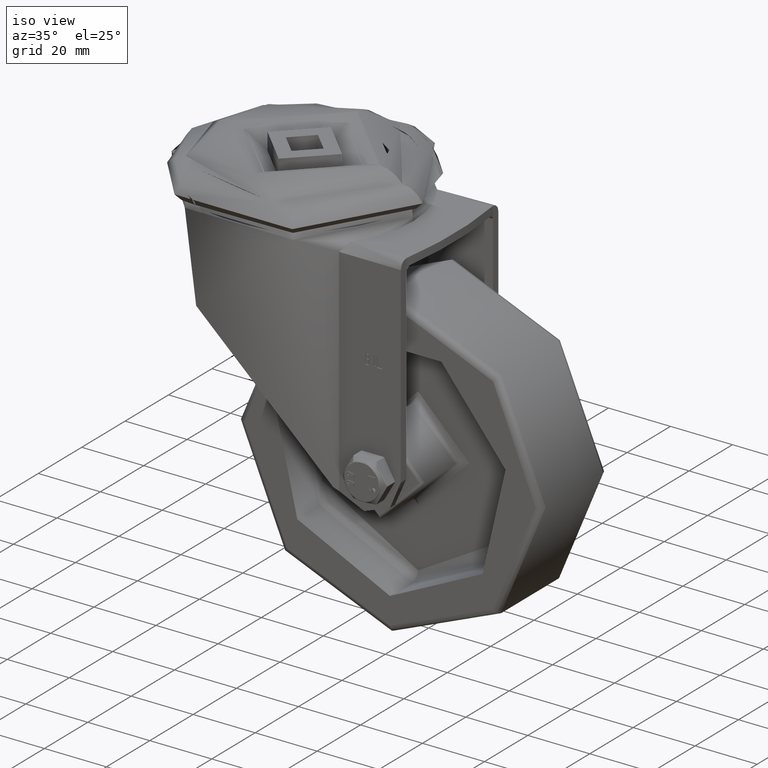
[diagram: clean part render]
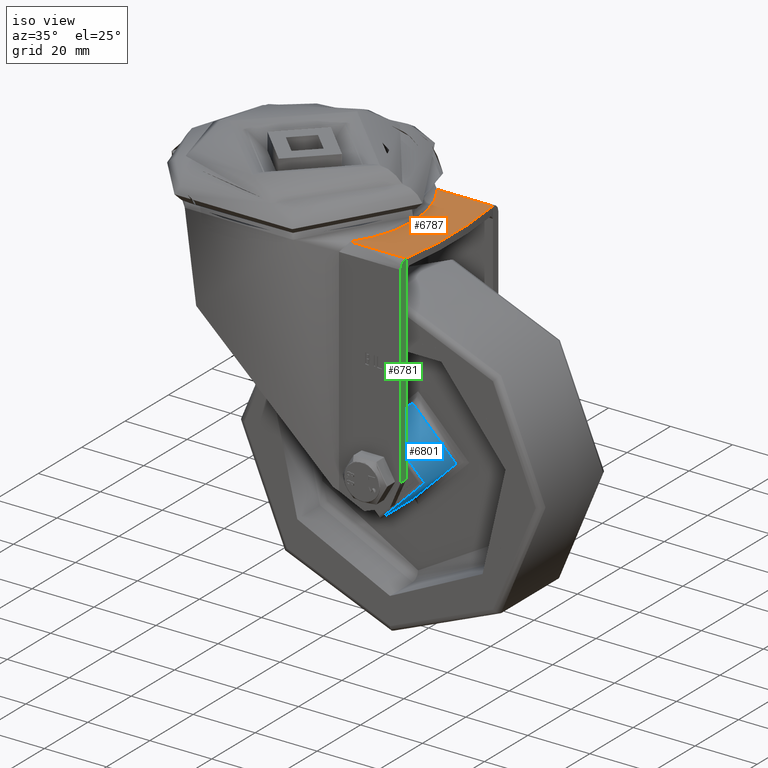
[diagram: same view with three faces highlighted in distinct colors, each labeled with its STEP entity id]
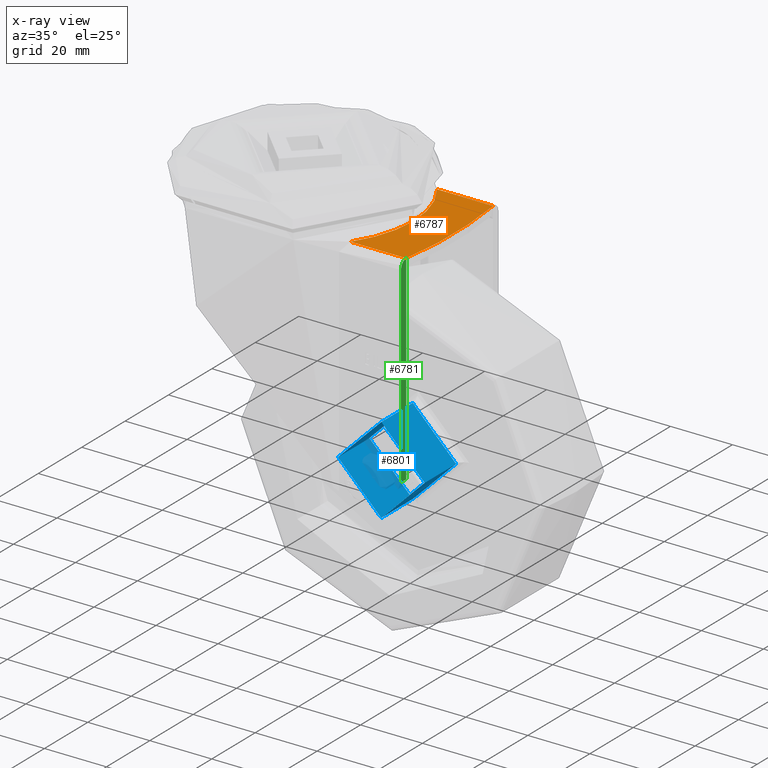
[diagram: x-ray of the same camera — body ghosted, the three highlighted faces saturated]
A machine part, iso view with three faces highlighted in distinct colors.
The next image is the same camera in x-ray (body ghosted, the three faces saturated) — at least one of them is partly hidden behind the body in this view.
Their STEP definitions:

[orange] entity #6787 — the highlighted planar face has unit normal (0, 0, -1).
#506=PLANE('',#7425);
#771=FACE_OUTER_BOUND('',#1204,.T.);
#1204=EDGE_LOOP('',(#4957,#4958,#4959,#4960,#4961));
#1583=LINE('',#10377,#2057);
#1584=LINE('',#10380,#2058);
#2057=VECTOR('',#8304,1000.);
#2058=VECTOR('',#8307,1000.);
#2587=CIRCLE('',#7365,35.);
#2588=CIRCLE('',#7366,35.);
#2604=CIRCLE('',#7418,134.083333333333);
#2928=VERTEX_POINT('',#10272);
#2929=VERTEX_POINT('',#10273);
#2930=VERTEX_POINT('',#10276);
#2938=VERTEX_POINT('',#10375);
#2939=VERTEX_POINT('',#10379);
#3593=EDGE_CURVE('',#2928,#2929,#2587,.T.);
#3595=EDGE_CURVE('',#2929,#2930,#2588,.T.);
#3605=EDGE_CURVE('',#2938,#2928,#1583,.T.);
#3606=EDGE_CURVE('',#2930,#2939,#1584,.T.);
#3736=EDGE_CURVE('',#2939,#2938,#2604,.T.);
#4957=ORIENTED_EDGE('',*,*,#3606,.F.);
#4958=ORIENTED_EDGE('',*,*,#3595,.F.);
#4959=ORIENTED_EDGE('',*,*,#3593,.F.);
#4960=ORIENTED_EDGE('',*,*,#3605,.F.);
#4961=ORIENTED_EDGE('',*,*,#3736,.F.);
#6787=ADVANCED_FACE('',(#771),#506,.F.);
#7365=AXIS2_PLACEMENT_3D('',#10274,#8292,#8293);
#7366=AXIS2_PLACEMENT_3D('',#10277,#8295,#8296);
#7418=AXIS2_PLACEMENT_3D('',#11652,#8482,#8483);
#7425=AXIS2_PLACEMENT_3D('',#11661,#8498,#8499);
#8292=DIRECTION('center_axis',(0.,0.,1.));
#8293=DIRECTION('ref_axis',(-1.,0.,0.));
#8295=DIRECTION('center_axis',(0.,0.,1.));
#8296=DIRECTION('ref_axis',(-1.,0.,0.));
#8304=DIRECTION('',(-1.,3.47980166499789E-16,0.));
#8307=DIRECTION('',(1.,-5.21970249749683E-16,0.));
#8482=DIRECTION('center_axis',(0.,0.,-1.));
#8483=DIRECTION('ref_axis',(0.988812927284027,0.149160969546302,0.));
#8498=DIRECTION('center_axis',(0.,0.,-1.));
#8499=DIRECTION('ref_axis',(-1.,0.,0.));
#10272=CARTESIAN_POINT('',(28.7228132326902,-20.,-4.));
#10273=CARTESIAN_POINT('',(35.,-4.28626379701574E-15,-4.));
#10274=CARTESIAN_POINT('Origin',(1.62468275916488E-16,7.45266716464862E-34,
-4.));
#10276=CARTESIAN_POINT('',(28.7228132326901,20.,-4.));
#10277=CARTESIAN_POINT('Origin',(1.62468275916488E-16,7.45266716464862E-34,
-4.));
#10375=CARTESIAN_POINT('',(46.75,-19.9999999999998,-4.));
#10377=CARTESIAN_POINT('',(41.7648783092273,-20.,-4.));
#10379=CARTESIAN_POINT('',(46.75,19.9999999999999,-4.));
#10380=CARTESIAN_POINT('',(41.7648783092273,20.,-4.));
#11652=CARTESIAN_POINT('Origin',(-85.8333333333332,4.42643606953415E-14,
-4.));
#11661=CARTESIAN_POINT('Origin',(46.75,-22.5,-4.));

[blue] entity #6801 — the highlighted cylindrical surface (bore or boss wall) has radius 14 mm, axis along (0, -1, 0).
#785=FACE_OUTER_BOUND('',#1225,.T.);
#1225=EDGE_LOOP('',(#5032,#5033,#5034,#5035));
#1670=LINE('',#11721,#2144);
#2144=VECTOR('',#8581,14.);
#2623=CIRCLE('',#7460,14.);
#2626=CIRCLE('',#7464,14.);
#3037=VERTEX_POINT('',#11714);
#3039=VERTEX_POINT('',#11720);
#3762=EDGE_CURVE('',#3037,#3037,#2623,.T.);
#3765=EDGE_CURVE('',#3037,#3039,#1670,.T.);
#3766=EDGE_CURVE('',#3039,#3039,#2626,.T.);
#5032=ORIENTED_EDGE('',*,*,#3762,.T.);
#5033=ORIENTED_EDGE('',*,*,#3765,.T.);
#5034=ORIENTED_EDGE('',*,*,#3766,.F.);
#5035=ORIENTED_EDGE('',*,*,#3765,.F.);
#6565=CYLINDRICAL_SURFACE('',#7463,14.);
#6801=ADVANCED_FACE('',(#785),#6565,.T.);
#7460=AXIS2_PLACEMENT_3D('',#11715,#8573,#8574);
#7463=AXIS2_PLACEMENT_3D('',#11719,#8579,#8580);
#7464=AXIS2_PLACEMENT_3D('',#11722,#8582,#8583);
#8573=DIRECTION('center_axis',(0.,1.,0.));
#8574=DIRECTION('ref_axis',(0.,0.,1.));
#8579=DIRECTION('center_axis',(0.,-1.,0.));
#8580=DIRECTION('ref_axis',(0.,0.,1.));
#8581=DIRECTION('',(0.,1.,0.));
#8582=DIRECTION('center_axis',(0.,1.,0.));
#8583=DIRECTION('ref_axis',(0.,0.,1.));
#11714=CARTESIAN_POINT('',(1.71450551880629E-15,-19.,-14.));
#11715=CARTESIAN_POINT('Origin',(0.,-19.,0.));
#11719=CARTESIAN_POINT('Origin',(0.,-11.75,0.));
#11720=CARTESIAN_POINT('',(1.71450551880629E-15,-4.5,-14.));
#11721=CARTESIAN_POINT('',(1.71450551880629E-15,-11.75,-14.));
#11722=CARTESIAN_POINT('Origin',(0.,-4.5,0.));

[green] entity #6781 — the highlighted planar face has unit normal (1, 0, 0).
#503=PLANE('',#7416);
#765=FACE_OUTER_BOUND('',#1197,.T.);
#1197=EDGE_LOOP('',(#4924,#4925,#4926,#4927,#4928));
#1658=LINE('',#11645,#2132);
#1659=LINE('',#11647,#2133);
#1660=LINE('',#11648,#2134);
#1661=LINE('',#11649,#2135);
#2132=VECTOR('',#8475,1000.);
#2133=VECTOR('',#8476,1000.);
#2134=VECTOR('',#8477,1000.);
#2135=VECTOR('',#8478,1000.);
#2589=CIRCLE('',#7368,2.5);
#2937=VERTEX_POINT('',#10373);
#2938=VERTEX_POINT('',#10375);
#2956=VERTEX_POINT('',#10581);
#3022=VERTEX_POINT('',#11644);
#3023=VERTEX_POINT('',#11646);
#3604=EDGE_CURVE('',#2937,#2938,#2589,.T.);
#3731=EDGE_CURVE('',#2937,#3022,#1658,.T.);
#3732=EDGE_CURVE('',#3022,#3023,#1659,.T.);
#3733=EDGE_CURVE('',#2956,#3023,#1660,.T.);
#3734=EDGE_CURVE('',#2938,#2956,#1661,.T.);
#4924=ORIENTED_EDGE('',*,*,#3604,.F.);
#4925=ORIENTED_EDGE('',*,*,#3731,.T.);
#4926=ORIENTED_EDGE('',*,*,#3732,.T.);
#4927=ORIENTED_EDGE('',*,*,#3733,.F.);
#4928=ORIENTED_EDGE('',*,*,#3734,.F.);
#6781=ADVANCED_FACE('',(#765),#503,.T.);
#7368=AXIS2_PLACEMENT_3D('',#10376,#8302,#8303);
#7416=AXIS2_PLACEMENT_3D('',#11643,#8473,#8474);
#8302=DIRECTION('center_axis',(-1.,0.,0.));
#8303=DIRECTION('ref_axis',(0.,-0.707106781186547,0.707106781186548));
#8473=DIRECTION('center_axis',(1.,0.,0.));
#8474=DIRECTION('ref_axis',(0.,-1.,0.));
#8475=DIRECTION('',(0.,0.,-1.));
#8476=DIRECTION('',(0.,1.,0.));
#8477=DIRECTION('',(0.,0.,-1.));
#8478=DIRECTION('',(0.,0.,-1.));
#10373=CARTESIAN_POINT('',(46.75,-22.5,-6.5));
#10375=CARTESIAN_POINT('',(46.75,-19.9999999999998,-4.));
#10376=CARTESIAN_POINT('Origin',(46.75,-20.,-6.5));
#10581=CARTESIAN_POINT('',(46.75,-19.9999999999998,-7.75000000000001));
#11643=CARTESIAN_POINT('Origin',(46.75,-21.2499999999999,-4.));
#11644=CARTESIAN_POINT('',(46.75,-22.5,-68.5));
#11645=CARTESIAN_POINT('',(46.75,-22.5,-4.));
#11646=CARTESIAN_POINT('',(46.75,-19.9999999999998,-68.5));
#11647=CARTESIAN_POINT('',(46.75,-21.2499999999999,-68.5));
#11648=CARTESIAN_POINT('',(46.75,-19.9999999999998,-4.));
#11649=CARTESIAN_POINT('',(46.75,-19.9999999999998,-4.));